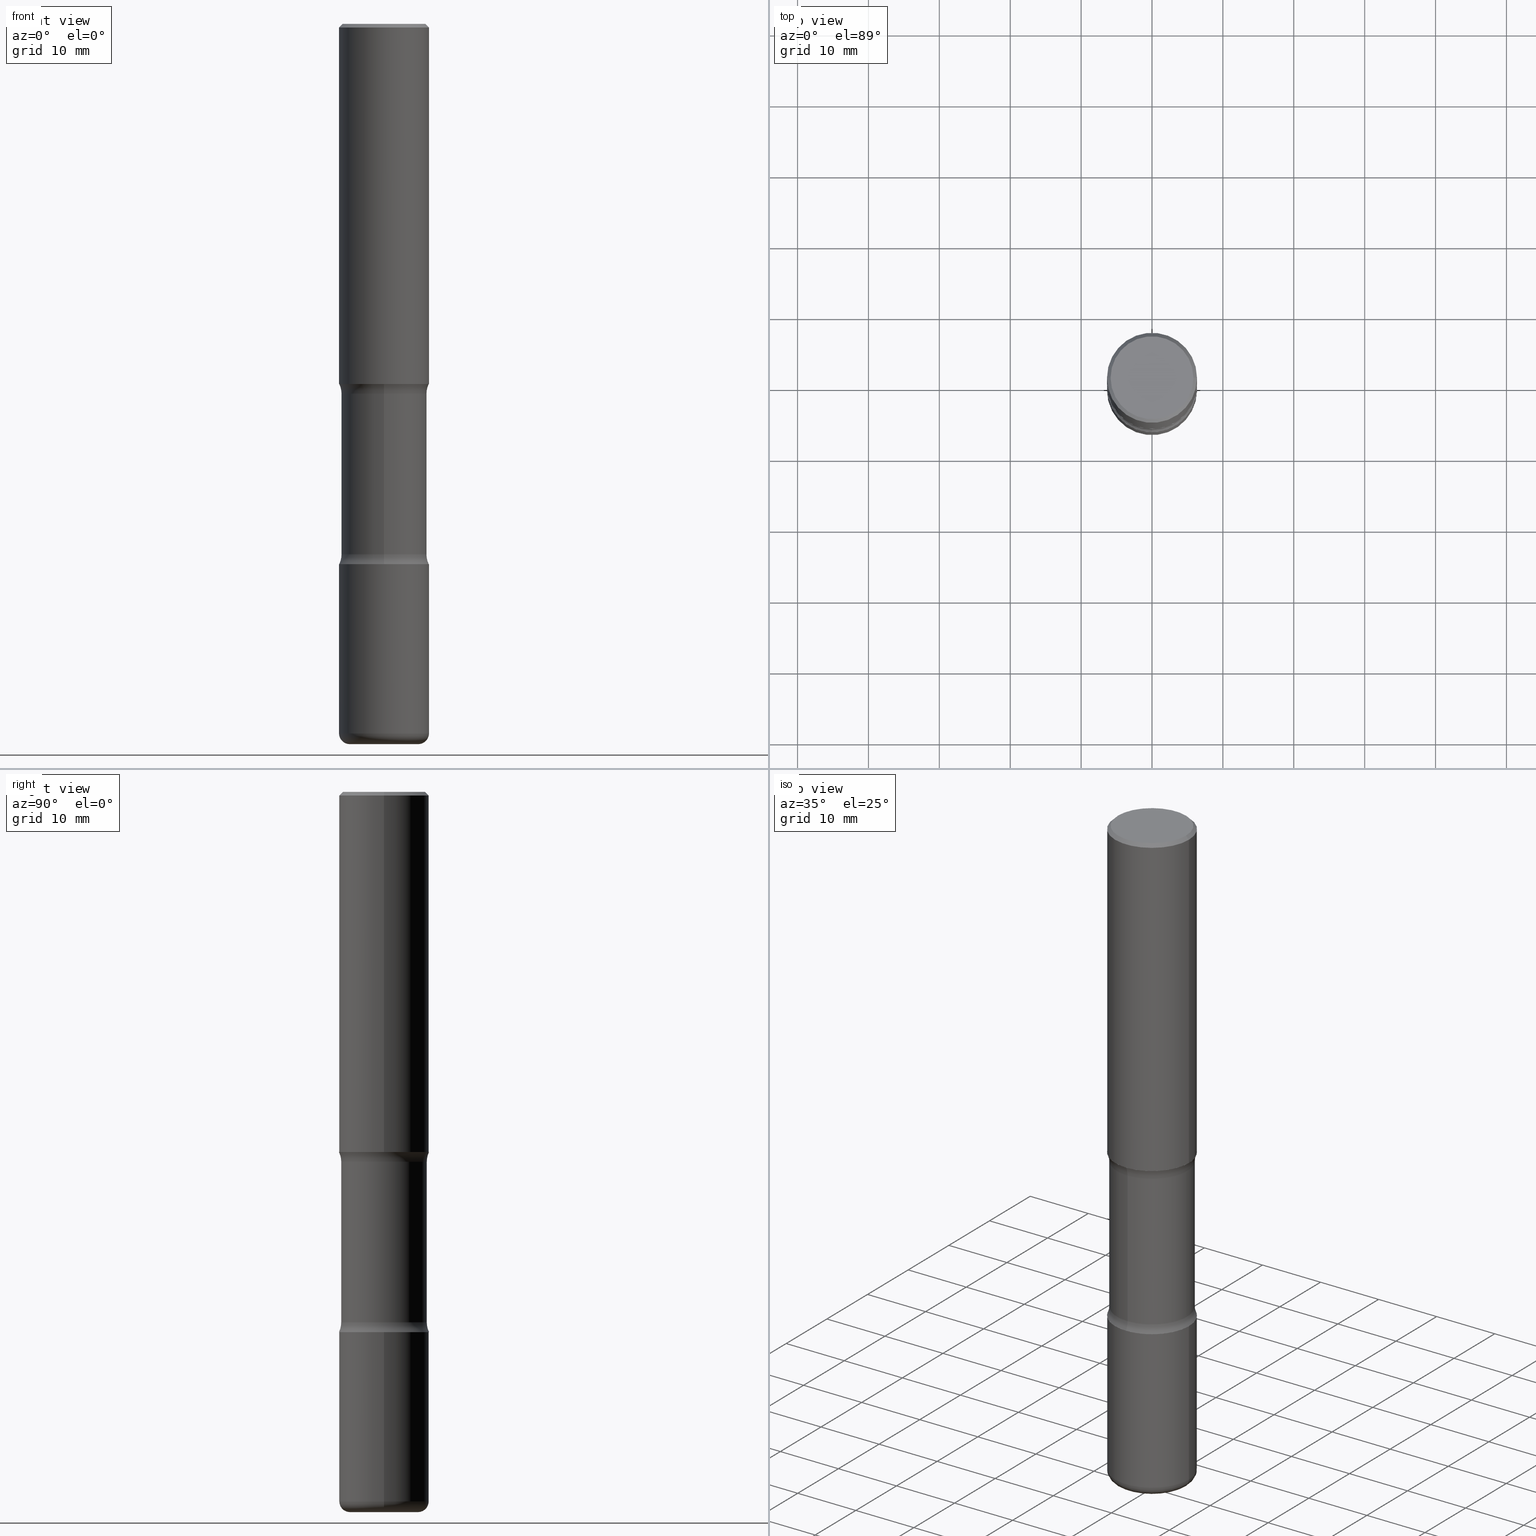
[diagram: canonical four-view strip — front | top / right | iso, engineering-drawing reading convention]
A machine part, canonical four-view strip (front | top / right | iso — engineering-drawing reading convention). The complete STEP part file that produces these views, byte-faithful:
ISO-10303-21;
HEADER;
FILE_DESCRIPTION (( 'STEP AP203' ),
    '1' );
FILE_NAME ('37884.STEP',
    '2024-03-02T01:04:07',
    ( '' ),
    ( '' ),
    'SwSTEP 2.0',
    'SolidWorks 2023',
    '' );
FILE_SCHEMA (( 'CONFIG_CONTROL_DESIGN' ));
ENDSEC;

DATA;
#1 = ORIENTED_EDGE ( 'NONE', *, *, #173, .T. ) ;
#2 = DIRECTION ( 'NONE',  ( -2.445468806185136597E-29, 3.491481338843145583E-15, 1.000000000000000000 ) ) ;
#3 = AXIS2_PLACEMENT_3D ( 'NONE', #403, #20, #494 ) ;
#4 = FACE_OUTER_BOUND ( 'NONE', #168, .T. ) ;
#5 = DIRECTION ( 'NONE',  ( 0.7071067811865467956, -7.319954787623254468E-15, -0.7071067811865482389 ) ) ;
#6 = ORIENTED_EDGE ( 'NONE', *, *, #523, .F. ) ;
#7 = DIRECTION ( 'NONE',  ( -0.7071067811865467956, 2.468850131082249172E-15, -0.7071067811865482389 ) ) ;
#8 = DATE_AND_TIME ( #13, #331 ) ;
#9 = COORDINATED_UNIVERSAL_TIME_OFFSET ( 5, 0, .BEHIND. ) ;
#10 = VECTOR ( 'NONE', #134, 39.37007874015748143 ) ;
#11 = AXIS2_PLACEMENT_3D ( 'NONE', #12, #45, #53 ) ;
#12 = CARTESIAN_POINT ( 'NONE',  ( 7.336406418555409790E-29, -1.047444401652943635E-14, -3.000000000000000444 ) ) ;
#13 = CALENDAR_DATE ( 2024, 1, 3 ) ;
#14 = ORGANIZATION ( 'UNSPECIFIED', 'UNSPECIFIED', '' ) ;
#15 = EDGE_CURVE ( 'NONE', #366, #549, #431, .T. ) ;
#16 = DIRECTION ( 'NONE',  ( 2.530378452311521502E-29, -3.369885892833230986E-15, -1.000000000000000000 ) ) ;
#17 = ADVANCED_FACE ( 'NONE', ( #117 ), #496, .T. ) ;
#18 = EDGE_CURVE ( 'NONE', #263, #549, #214, .T. ) ;
#19 = DIRECTION ( 'NONE',  ( 2.530378452311521502E-29, -3.369885892833230986E-15, -1.000000000000000000 ) ) ;
#20 = DIRECTION ( 'NONE',  ( -2.445468806185136597E-29, 3.491481338843145583E-15, 1.000000000000000000 ) ) ;
#21 = AXIS2_PLACEMENT_3D ( 'NONE', #365, #409, #368 ) ;
#22 = APPROVAL_STATUS ( 'not_yet_approved' ) ;
#23 = CC_DESIGN_DATE_AND_TIME_ASSIGNMENT ( #8, #183, ( #387 ) ) ;
#24 = PLANE ( 'NONE',  #82 ) ;
#25 = DIRECTION ( 'NONE',  ( -1.000000000000000000, 6.982962677686265922E-15, -4.876176775795935793E-29 ) ) ;
#26 = DIRECTION ( 'NONE',  ( 2.530378452311521502E-29, -3.369885892833230986E-15, -1.000000000000000000 ) ) ;
#27 = ORIENTED_EDGE ( 'NONE', *, *, #240, .F. ) ;
#28 = CARTESIAN_POINT ( 'NONE',  ( 0.000000000000000000, 0.000000000000000000, 0.000000000000000000 ) ) ;
#29 = SHAPE_DEFINITION_REPRESENTATION ( #479, #146 ) ;
#30 = CARTESIAN_POINT ( 'NONE',  ( 0.000000000000000000, 0.000000000000000000, 0.000000000000000000 ) ) ;
#31 = VECTOR ( 'NONE', #258, 39.37007874015748143 ) ;
#32 = CARTESIAN_POINT ( 'NONE',  ( 0.1900000000000003630, -1.508319938380238721E-14, -3.939999999999999947 ) ) ;
#33 = EDGE_LOOP ( 'NONE', ( #392, #410, #456, #43 ) ) ;
#34 = ORIENTED_EDGE ( 'NONE', *, *, #94, .F. ) ;
#35 = DIRECTION ( 'NONE',  ( 2.530378452311521502E-29, -3.369885892833230592E-15, -1.000000000000000000 ) ) ;
#36 = CARTESIAN_POINT ( 'NONE',  ( -1.715124499442836348E-15, -0.2500000000000074385, -1.999999999999999112 ) ) ;
#37 = ORIENTED_EDGE ( 'NONE', *, *, #378, .T. ) ;
#38 = AXIS2_PLACEMENT_3D ( 'NONE', #415, #373, #328 ) ;
#39 = AXIS2_PLACEMENT_3D ( 'NONE', #250, #505, #327 ) ;
#40 = EDGE_CURVE ( 'NONE', #549, #366, #404, .T. ) ;
#41 = APPLICATION_PROTOCOL_DEFINITION ( 'international standard', 'config_control_design', 1994, #92 ) ;
#42 = LINE ( 'NONE', #177, #31 ) ;
#43 = ORIENTED_EDGE ( 'NONE', *, *, #261, .F. ) ;
#44 = CARTESIAN_POINT ( 'NONE',  ( -0.1900000000000003630, -1.240640527709780088E-14, -3.939999999999999947 ) ) ;
#45 = DIRECTION ( 'NONE',  ( -2.445468806185136597E-29, 3.491481338843145583E-15, 1.000000000000000000 ) ) ;
#46 = DIRECTION ( 'NONE',  ( 6.982962677686265922E-15, 1.000000000000000000, -3.369885892833230986E-15 ) ) ;
#47 = ADVANCED_FACE ( 'NONE', ( #344 ), #249, .T. ) ;
#48 = TOROIDAL_SURFACE ( 'NONE', #424, 0.3625000000000000999, 0.1250000000000000000 ) ;
#49 = APPROVAL_PERSON_ORGANIZATION ( #309, #71, #356 ) ;
#50 = ORIENTED_EDGE ( 'NONE', *, *, #173, .F. ) ;
#51 = CARTESIAN_POINT ( 'NONE',  ( -0.2500000000000000555, 1.776356839400250859E-15, -1.229733772563726866E-29 ) ) ;
#52 = DIRECTION ( 'NONE',  ( 1.000000000000000000, -6.982962677686267499E-15, 0.000000000000000000 ) ) ;
#53 = DIRECTION ( 'NONE',  ( 1.000000000000000000, -6.982962677686270655E-15, 0.000000000000000000 ) ) ;
#54 = DATE_AND_TIME ( #265, #381 ) ;
#55 = ORIENTED_EDGE ( 'NONE', *, *, #138, .T. ) ;
#56 = DIRECTION ( 'NONE',  ( -1.000000000000000000, 6.982962677686265922E-15, -4.876176775795935793E-29 ) ) ;
#57 = CC_DESIGN_PERSON_AND_ORGANIZATION_ASSIGNMENT ( #236, #419, ( #387 ) ) ;
#58 = AXIS2_PLACEMENT_3D ( 'NONE', #484, #449, #541 ) ;
#59 = EDGE_LOOP ( 'NONE', ( #1, #186, #443, #242 ) ) ;
#60 = DIRECTION ( 'NONE',  ( 1.000000000000000000, -6.982962677686265922E-15, 0.000000000000000000 ) ) ;
#61 = DIRECTION ( 'NONE',  ( 2.438088387897960049E-29, -3.491481338843145188E-15, -1.000000000000000000 ) ) ;
#62 = APPROVAL ( #22, 'UNSPECIFIED' ) ;
#63 = VERTEX_POINT ( 'NONE', #520 ) ;
#64 = CARTESIAN_POINT ( 'NONE',  ( 4.943898765775623630E-29, -7.288170524422749615E-15, -2.054486236794258680 ) ) ;
#65 = AXIS2_PLACEMENT_3D ( 'NONE', #121, #465, #294 ) ;
#66 = CARTESIAN_POINT ( 'NONE',  ( 4.890937612370273194E-29, -6.982962677686291165E-15, -2.000000000000000000 ) ) ;
#67 = APPROVAL_DATE_TIME ( #102, #71 ) ;
#68 = EDGE_LOOP ( 'NONE', ( #281, #337 ) ) ;
#69 = DIRECTION ( 'NONE',  ( -2.530378452311521502E-29, 3.369885892833230592E-15, 1.000000000000000000 ) ) ;
#70 = EDGE_CURVE ( 'NONE', #122, #453, #257, .T. ) ;
#71 = APPROVAL ( #185, 'UNSPECIFIED' ) ;
#72 = ORIENTED_EDGE ( 'NONE', *, *, #268, .T. ) ;
#73 = DIRECTION ( 'NONE',  ( 6.982962677686265922E-15, 1.000000000000000000, -3.369885892833230986E-15 ) ) ;
#74 = TOROIDAL_SURFACE ( 'NONE', #385, 0.1900000000000003630, 0.05999999999999995615 ) ;
#75 = FACE_OUTER_BOUND ( 'NONE', #178, .T. ) ;
#76 = EDGE_LOOP ( 'NONE', ( #201, #150, #372, #547 ) ) ;
#77 = DIRECTION ( 'NONE',  ( 0.000000000000000000, 0.000000000000000000, 1.000000000000000000 ) ) ;
#78 = ADVANCED_FACE ( 'NONE', ( #526 ), #228, .F. ) ;
#79 = CARTESIAN_POINT ( 'NONE',  ( 0.2500000000000002776, -1.222018468595100619E-14, -3.000000000000000444 ) ) ;
#80 = EDGE_LOOP ( 'NONE', ( #420, #55 ) ) ;
#81 = AXIS2_PLACEMENT_3D ( 'NONE', #44, #560, #127 ) ;
#82 = AXIS2_PLACEMENT_3D ( 'NONE', #223, #61, #25 ) ;
#83 = AXIS2_PLACEMENT_3D ( 'NONE', #248, #282, #461 ) ;
#84 = ORIENTED_EDGE ( 'NONE', *, *, #540, .F. ) ;
#85 = DIRECTION ( 'NONE',  ( -1.000000000000000000, 6.982962677686265922E-15, -4.883557194083112340E-29 ) ) ;
#86 = DIRECTION ( 'NONE',  ( -2.445468806185136597E-29, 3.491481338843145583E-15, 1.000000000000000000 ) ) ;
#87 = PLANE ( 'NONE',  #103 ) ;
#88 = AXIS2_PLACEMENT_3D ( 'NONE', #290, #247, #300 ) ;
#89 = AXIS2_PLACEMENT_3D ( 'NONE', #215, #391, #341 ) ;
#90 = EDGE_LOOP ( 'NONE', ( #6, #512, #537, #267 ) ) ;
#91 = CARTESIAN_POINT ( 'NONE',  ( 4.976491023364875751E-29, -7.241496556518841686E-15, -2.054486236794258680 ) ) ;
#92 = APPLICATION_CONTEXT ( 'configuration controlled 3d designs of mechanical parts and assemblies' ) ;
#93 = EDGE_CURVE ( 'NONE', #210, #546, #467, .T. ) ;
#94 = EDGE_CURVE ( 'NONE', #142, #164, #221, .T. ) ;
#95 = FACE_OUTER_BOUND ( 'NONE', #557, .T. ) ;
#96 = AXIS2_PLACEMENT_3D ( 'NONE', #477, #86, #538 ) ;
#97 = CYLINDRICAL_SURFACE ( 'NONE', #432, 0.2375000000000000999 ) ;
#98 = DIRECTION ( 'NONE',  ( 1.000000000000000000, -6.982962677686265922E-15, 4.876176775795935793E-29 ) ) ;
#99 = EDGE_LOOP ( 'NONE', ( #506, #539, #389, #84 ) ) ;
#100 = DIRECTION ( 'NONE',  ( 1.000000000000000000, -6.982962677686269077E-15, 4.883557194083113462E-29 ) ) ;
#101 = DIRECTION ( 'NONE',  ( 6.982962677686265133E-15, 1.000000000000000000, -2.300503573612010239E-15 ) ) ;
#102 = DATE_AND_TIME ( #408, #470 ) ;
#103 = AXIS2_PLACEMENT_3D ( 'NONE', #483, #481, #137 ) ;
#104 = VECTOR ( 'NONE', #35, 39.37007874015748143 ) ;
#105 = EDGE_LOOP ( 'NONE', ( #338, #550, #118, #144 ) ) ;
#106 = PERSON ( 'UNSPECIFIED', 'UNSPECIFIED', 'UNSPECIFIED', ('UNSPECIFIED'), ('UNSPECIFIED'), ('UNSPECIFIED') ) ;
#107 = APPROVAL_ROLE ( '' ) ;
#108 = CC_DESIGN_PERSON_AND_ORGANIZATION_ASSIGNMENT ( #435, #531, ( #444 ) ) ;
#109 = EDGE_CURVE ( 'NONE', #485, #423, #413, .T. ) ;
#110 = DATE_AND_TIME ( #369, #425 ) ;
#111 = DIRECTION ( 'NONE',  ( 1.000000000000000000, -6.982962677686270655E-15, 0.000000000000000000 ) ) ;
#112 = VERTEX_POINT ( 'NONE', #335 ) ;
#113 = DIRECTION ( 'NONE',  ( 6.982962677686265133E-15, 1.000000000000000000, -3.278217592397110735E-15 ) ) ;
#114 = CARTESIAN_POINT ( 'NONE',  ( -0.1900000000000003630, -1.229798689653506559E-14, -4.000000000000000000 ) ) ;
#115 = SECURITY_CLASSIFICATION_LEVEL ( 'unclassified' ) ;
#116 = CC_DESIGN_APPROVAL ( #120, ( #131 ) ) ;
#117 = FACE_OUTER_BOUND ( 'NONE', #76, .T. ) ;
#118 = ORIENTED_EDGE ( 'NONE', *, *, #514, .T. ) ;
#119 =( CONVERSION_BASED_UNIT ( 'INCH', #548 ) LENGTH_UNIT ( ) NAMED_UNIT ( #471 ) );
#120 = APPROVAL ( #500, 'UNSPECIFIED' ) ;
#121 = CARTESIAN_POINT ( 'NONE',  ( 9.635147096369438236E-29, -1.375643647504199401E-14, -3.939999999999999947 ) ) ;
#122 = VERTEX_POINT ( 'NONE', #376 ) ;
#123 = DIRECTION ( 'NONE',  ( 2.530378452311521502E-29, -3.369885892833230986E-15, -1.000000000000000000 ) ) ;
#124 = DIRECTION ( 'NONE',  ( 1.000000000000000000, -6.982962677686267499E-15, 4.876176775795936353E-29 ) ) ;
#125 = ORIENTED_EDGE ( 'NONE', *, *, #474, .T. ) ;
#126 = EDGE_LOOP ( 'NONE', ( #195, #169, #552, #286 ) ) ;
#127 = DIRECTION ( 'NONE',  ( -1.000000000000000000, 7.105427357600993970E-15, 0.000000000000000000 ) ) ;
#128 = CIRCLE ( 'NONE', #58, 0.1900000000000003630 ) ;
#129 = AXIS2_PLACEMENT_3D ( 'NONE', #554, #69, #330 ) ;
#130 = DIRECTION ( 'NONE',  ( 1.000000000000000000, -6.982962677686267499E-15, 4.876176775795936353E-29 ) ) ;
#131 = PRODUCT_DEFINITION ( 'UNKNOWN', '', #444, #528 ) ;
#132 = MANIFOLD_SOLID_BREP ( 'Body-Move/Copy2[1]', #204 ) ;
#133 = CARTESIAN_POINT ( 'NONE',  ( 9.781875224740546387E-29, -1.396592535537258233E-14, -4.000000000000000000 ) ) ;
#134 = DIRECTION ( 'NONE',  ( -2.445468806185136877E-29, 3.491481338843145188E-15, 1.000000000000000000 ) ) ;
#135 = CARTESIAN_POINT ( 'NONE',  ( 7.336406418555409790E-29, -1.047444401652943635E-14, -3.000000000000000444 ) ) ;
#136 = CIRCLE ( 'NONE', #342, 0.1900000000000003630 ) ;
#137 = DIRECTION ( 'NONE',  ( 6.982962677686265922E-15, 1.000000000000000000, -3.369885892833230592E-15 ) ) ;
#138 = EDGE_CURVE ( 'NONE', #421, #63, #237, .T. ) ;
#139 = ADVANCED_FACE ( 'NONE', ( #297 ), #269, .T. ) ;
#140 = DIRECTION ( 'NONE',  ( -2.445468806185136877E-29, 3.491481338843145188E-15, 1.000000000000000000 ) ) ;
#141 = PERSON_AND_ORGANIZATION ( #106, #14 ) ;
#142 = VERTEX_POINT ( 'NONE', #36 ) ;
#143 = DIRECTION ( 'NONE',  ( 1.000000000000000000, -6.982962677686267499E-15, 4.876176775795935793E-29 ) ) ;
#144 = ORIENTED_EDGE ( 'NONE', *, *, #522, .T. ) ;
#145 = AXIS2_PLACEMENT_3D ( 'NONE', #359, #441, #148 ) ;
#146 = ADVANCED_BREP_SHAPE_REPRESENTATION ( '37884', ( #132, #507, #305, #316 ), #153 ) ;
#147 = FACE_OUTER_BOUND ( 'NONE', #59, .T. ) ;
#148 = DIRECTION ( 'NONE',  ( 1.000000000000000000, -6.982962677686266711E-15, 4.876176775795935793E-29 ) ) ;
#149 = PERSON_AND_ORGANIZATION ( #106, #14 ) ;
#150 = ORIENTED_EDGE ( 'NONE', *, *, #326, .T. ) ;
#151 = DIRECTION ( 'NONE',  ( 6.982962677686265133E-15, 1.000000000000000000, -3.450755360418014766E-15 ) ) ;
#152 = AXIS2_PLACEMENT_3D ( 'NONE', #458, #235, #73 ) ;
#153 =( GEOMETRIC_REPRESENTATION_CONTEXT ( 3 ) GLOBAL_UNCERTAINTY_ASSIGNED_CONTEXT ( ( #448 ) ) GLOBAL_UNIT_ASSIGNED_CONTEXT ( ( #119, #412, #504 ) ) REPRESENTATION_CONTEXT ( 'NONE', 'WORKASPACE' ) );
#154 = CC_DESIGN_PERSON_AND_ORGANIZATION_ASSIGNMENT ( #141, #310, ( #444 ) ) ;
#155 = EDGE_LOOP ( 'NONE', ( #361, #159, #292, #238 ) ) ;
#156 = CARTESIAN_POINT ( 'NONE',  ( 1.745740669421641422E-15, 0.2499999999999897582, -3.000000000000000888 ) ) ;
#157 = CARTESIAN_POINT ( 'NONE',  ( -0.2500000000000003331, -1.198007963564174197E-14, -3.939999999999999947 ) ) ;
#158 = EDGE_CURVE ( 'NONE', #288, #549, #279, .T. ) ;
#159 = ORIENTED_EDGE ( 'NONE', *, *, #454, .T. ) ;
#160 = DIRECTION ( 'NONE',  ( -6.982962677686266711E-15, -1.000000000000000000, 3.491481338843145583E-15 ) ) ;
#161 = CIRCLE ( 'NONE', #351, 0.1250000000000000000 ) ;
#162 = EDGE_LOOP ( 'NONE', ( #339, #427, #336, #508 ) ) ;
#163 = AXIS2_PLACEMENT_3D ( 'NONE', #28, #501, #196 ) ;
#164 = VERTEX_POINT ( 'NONE', #289 ) ;
#165 = APPLICATION_PROTOCOL_DEFINITION ( 'international standard', 'config_control_design', 1994, #466 ) ;
#166 = DIRECTION ( 'NONE',  ( 6.982962677686265133E-15, 1.000000000000000000, -3.278217592397110735E-15 ) ) ;
#167 = VERTEX_POINT ( 'NONE', #79 ) ;
#168 = EDGE_LOOP ( 'NONE', ( #72, #37 ) ) ;
#169 = ORIENTED_EDGE ( 'NONE', *, *, #272, .T. ) ;
#170 = CARTESIAN_POINT ( 'NONE',  ( 4.890937612370289799E-31, -6.982962677686315028E-17, -0.02000000000000006981 ) ) ;
#171 = DIRECTION ( 'NONE',  ( 1.000000000000000000, -6.982962677686270655E-15, 0.000000000000000000 ) ) ;
#172 = ADVANCED_FACE ( 'NONE', ( #198 ), #536, .F. ) ;
#173 = EDGE_CURVE ( 'NONE', #423, #546, #197, .T. ) ;
#174 = VECTOR ( 'NONE', #140, 39.37007874015748143 ) ;
#175 = DIRECTION ( 'NONE',  ( 2.530378452311521502E-29, -3.369885892833230592E-15, -1.000000000000000000 ) ) ;
#176 = FACE_OUTER_BOUND ( 'NONE', #511, .T. ) ;
#177 = CARTESIAN_POINT ( 'NONE',  ( 0.2500000000000003331, -1.745740669421569044E-15, 1.219044193948985630E-29 ) ) ;
#178 = EDGE_LOOP ( 'NONE', ( #125, #374, #243, #400 ) ) ;
#179 = CC_DESIGN_PERSON_AND_ORGANIZATION_ASSIGNMENT ( #360, #490, ( #131 ) ) ;
#180 = CARTESIAN_POINT ( 'NONE',  ( 4.890937612370289799E-31, -6.982962677686315028E-17, -0.02000000000000006981 ) ) ;
#181 = CIRCLE ( 'NONE', #499, 0.2299999999999998990 ) ;
#182 = DIRECTION ( 'NONE',  ( -2.445468806185136597E-29, 3.491481338843145583E-15, 1.000000000000000000 ) ) ;
#183 = DATE_TIME_ROLE ( 'classification_date' ) ;
#184 = CARTESIAN_POINT ( 'NONE',  ( 0.2500000000000003331, -1.550217714446356385E-14, -3.939999999999999947 ) ) ;
#185 = APPROVAL_STATUS ( 'not_yet_approved' ) ;
#186 = ORIENTED_EDGE ( 'NONE', *, *, #343, .T. ) ;
#187 = FACE_OUTER_BOUND ( 'NONE', #80, .T. ) ;
#188 = VECTOR ( 'NONE', #175, 39.37007874015748143 ) ;
#189 = CIRCLE ( 'NONE', #11, 0.2500000000000002776 ) ;
#190 = DIRECTION ( 'NONE',  ( -2.445468806185136597E-29, 3.491481338843145583E-15, 1.000000000000000000 ) ) ;
#191 = ORIENTED_EDGE ( 'NONE', *, *, #343, .F. ) ;
#192 = DIRECTION ( 'NONE',  ( 1.000000000000000000, -6.982962677686266711E-15, 4.876176775795935793E-29 ) ) ;
#193 = CC_DESIGN_DATE_AND_TIME_ASSIGNMENT ( #226, #440, ( #131 ) ) ;
#194 = CARTESIAN_POINT ( 'NONE',  ( 9.635147096369438236E-29, -1.375643647504199401E-14, -3.939999999999999947 ) ) ;
#195 = ORIENTED_EDGE ( 'NONE', *, *, #436, .F. ) ;
#196 = DIRECTION ( 'NONE',  ( 1.000000000000000000, -6.982962677686267499E-15, 4.876176775795935793E-29 ) ) ;
#197 = CIRCLE ( 'NONE', #251, 0.2500000000000003886 ) ;
#198 = FACE_OUTER_BOUND ( 'NONE', #105, .T. ) ;
#199 = PERSON_AND_ORGANIZATION ( #106, #14 ) ;
#200 = CARTESIAN_POINT ( 'NONE',  ( 4.806027966243888288E-29, -7.104558123696206156E-15, -2.000000000000000000 ) ) ;
#201 = ORIENTED_EDGE ( 'NONE', *, *, #138, .F. ) ;
#202 = VERTEX_POINT ( 'NONE', #156 ) ;
#203 = CARTESIAN_POINT ( 'NONE',  ( -1.672246386956739071E-15, -0.2375000000000103417, -2.945513763205740876 ) ) ;
#204 = CLOSED_SHELL ( 'NONE', ( #429, #139, #402, #497, #417, #370 ) ) ;
#205 = CARTESIAN_POINT ( 'NONE',  ( -2.486930524192108484E-15, -0.3625000000000104250, -2.945513763205740432 ) ) ;
#206 = CIRCLE ( 'NONE', #222, 0.2500000000000002776 ) ;
#207 = CARTESIAN_POINT ( 'NONE',  ( 4.806027966243888288E-29, -7.104558123696206156E-15, -2.000000000000000000 ) ) ;
#208 = ADVANCED_FACE ( 'NONE', ( #426 ), #527, .F. ) ;
#209 = LINE ( 'NONE', #256, #350 ) ;
#210 = VERTEX_POINT ( 'NONE', #114 ) ;
#211 = DIRECTION ( 'NONE',  ( -2.445468806185136597E-29, 3.491481338843145583E-15, 1.000000000000000000 ) ) ;
#212 = AXIS2_PLACEMENT_3D ( 'NONE', #394, #85, #352 ) ;
#213 = APPROVAL_PERSON_ORGANIZATION ( #149, #62, #319 ) ;
#214 = LINE ( 'NONE', #219, #188 ) ;
#215 = CARTESIAN_POINT ( 'NONE',  ( -2.486930524192130572E-15, -0.3625000000000073164, -2.054486236794257792 ) ) ;
#216 = ORIENTED_EDGE ( 'NONE', *, *, #395, .T. ) ;
#217 = CARTESIAN_POINT ( 'NONE',  ( 0.2499999999999999167, -1.784954126219745400E-15, -0.02000000000000006981 ) ) ;
#218 = ORIENTED_EDGE ( 'NONE', *, *, #388, .F. ) ;
#219 = CARTESIAN_POINT ( 'NONE',  ( -1.629368274470640415E-15, -0.2375000000000139222, -3.999999999999999556 ) ) ;
#220 = CARTESIAN_POINT ( 'NONE',  ( 0.2500000000000001665, -8.728703347107858632E-15, -2.000000000000000000 ) ) ;
#221 = CIRCLE ( 'NONE', #515, 0.2500000000000003886 ) ;
#222 = AXIS2_PLACEMENT_3D ( 'NONE', #135, #433, #304 ) ;
#223 = CARTESIAN_POINT ( 'NONE',  ( 9.781875224740546387E-29, -1.396592535537258233E-14, -4.000000000000000000 ) ) ;
#224 = FACE_OUTER_BOUND ( 'NONE', #162, .T. ) ;
#225 = DIRECTION ( 'NONE',  ( 6.982962677686265133E-15, 1.000000000000000000, -2.300503573612010239E-15 ) ) ;
#226 = DATE_AND_TIME ( #275, #556 ) ;
#227 = EDGE_LOOP ( 'NONE', ( #296, #27, #276, #543 ) ) ;
#228 = TOROIDAL_SURFACE ( 'NONE', #321, 0.3625000000000000999, 0.1250000000000000278 ) ;
#229 = AXIS2_PLACEMENT_3D ( 'NONE', #180, #521, #348 ) ;
#230 = APPROVAL_PERSON_ORGANIZATION ( #283, #120, #107 ) ;
#231 = DIRECTION ( 'NONE',  ( -2.445468806185136597E-29, 3.491481338843145583E-15, 1.000000000000000000 ) ) ;
#232 = EDGE_CURVE ( 'NONE', #423, #167, #42, .T. ) ;
#233 = CARTESIAN_POINT ( 'NONE',  ( 9.866784870866931853E-29, -1.384432990936266734E-14, -4.000000000000000000 ) ) ;
#234 = FACE_OUTER_BOUND ( 'NONE', #68, .T. ) ;
#235 = DIRECTION ( 'NONE',  ( 2.530378452311521502E-29, -3.369885892833230986E-15, -1.000000000000000000 ) ) ;
#236 = PERSON_AND_ORGANIZATION ( #106, #14 ) ;
#237 = CIRCLE ( 'NONE', #287, 0.2299999999999998990 ) ;
#238 = ORIENTED_EDGE ( 'NONE', *, *, #395, .F. ) ;
#239 = AXIS2_PLACEMENT_3D ( 'NONE', #451, #190, #143 ) ;
#240 = EDGE_CURVE ( 'NONE', #202, #288, #206, .T. ) ;
#241 = DIRECTION ( 'NONE',  ( 6.860497997771532351E-15, 1.000000000000000000, 0.000000000000000000 ) ) ;
#242 = ORIENTED_EDGE ( 'NONE', *, *, #232, .F. ) ;
#243 = ORIENTED_EDGE ( 'NONE', *, *, #312, .F. ) ;
#244 = CYLINDRICAL_SURFACE ( 'NONE', #163, 0.2500000000000000555 ) ;
#245 = ORIENTED_EDGE ( 'NONE', *, *, #498, .F. ) ;
#246 = DIRECTION ( 'NONE',  ( 1.000000000000000000, 0.000000000000000000, 0.000000000000000000 ) ) ;
#247 = DIRECTION ( 'NONE',  ( 2.445468806185136597E-29, -3.491481338843145583E-15, -1.000000000000000000 ) ) ;
#248 = CARTESIAN_POINT ( 'NONE',  ( 7.336406418555409790E-29, -1.047444401652943635E-14, -3.000000000000000444 ) ) ;
#249 = CONICAL_SURFACE ( 'NONE', #259, 0.2499999999999999167, 0.7853981633974472798 ) ;
#250 = CARTESIAN_POINT ( 'NONE',  ( 4.976491023364875751E-29, -7.241496556518841686E-15, -2.054486236794258680 ) ) ;
#251 = AXIS2_PLACEMENT_3D ( 'NONE', #383, #284, #462 ) ;
#252 = CC_DESIGN_PERSON_AND_ORGANIZATION_ASSIGNMENT ( #199, #509, ( #346 ) ) ;
#253 = LINE ( 'NONE', #434, #489 ) ;
#254 = VERTEX_POINT ( 'NONE', #217 ) ;
#255 = DIRECTION ( 'NONE',  ( 2.530378452311521502E-29, -3.369885892833230986E-15, -1.000000000000000000 ) ) ;
#256 = CARTESIAN_POINT ( 'NONE',  ( 0.2499999999999999167, -1.784954126219745400E-15, -0.02000000000000006981 ) ) ;
#257 = LINE ( 'NONE', #51, #10 ) ;
#258 = DIRECTION ( 'NONE',  ( -2.445468806185136877E-29, 3.491481338843145188E-15, 1.000000000000000000 ) ) ;
#259 = AXIS2_PLACEMENT_3D ( 'NONE', #170, #393, #390 ) ;
#260 = AXIS2_PLACEMENT_3D ( 'NONE', #64, #16, #533 ) ;
#261 = EDGE_CURVE ( 'NONE', #453, #254, #545, .T. ) ;
#262 = CIRCLE ( 'NONE', #83, 0.2500000000000002776 ) ;
#263 = VERTEX_POINT ( 'NONE', #428 ) ;
#264 = DIRECTION ( 'NONE',  ( 2.438088387897960049E-29, -3.491481338843145188E-15, -1.000000000000000000 ) ) ;
#265 = CALENDAR_DATE ( 2024, 1, 3 ) ;
#266 = CYLINDRICAL_SURFACE ( 'NONE', #145, 0.2500000000000003331 ) ;
#267 = ORIENTED_EDGE ( 'NONE', *, *, #271, .F. ) ;
#268 = EDGE_CURVE ( 'NONE', #167, #519, #189, .T. ) ;
#269 = TOROIDAL_SURFACE ( 'NONE', #65, 0.1900000000000003630, 0.05999999999999995615 ) ;
#270 = AXIS2_PLACEMENT_3D ( 'NONE', #293, #422, #151 ) ;
#271 = EDGE_CURVE ( 'NONE', #202, #366, #516, .T. ) ;
#272 = EDGE_CURVE ( 'NONE', #263, #142, #414, .T. ) ;
#273 = CARTESIAN_POINT ( 'NONE',  ( -0.2499999999999999167, 1.675911042644703182E-15, -0.02000000000000006981 ) ) ;
#274 = CARTESIAN_POINT ( 'NONE',  ( 0.000000000000000000, 0.000000000000000000, 0.000000000000000000 ) ) ;
#275 = CALENDAR_DATE ( 2024, 1, 3 ) ;
#276 = ORIENTED_EDGE ( 'NONE', *, *, #271, .T. ) ;
#277 = FACE_OUTER_BOUND ( 'NONE', #155, .T. ) ;
#278 = EDGE_CURVE ( 'NONE', #63, #453, #253, .T. ) ;
#279 = CIRCLE ( 'NONE', #405, 0.1250000000000000278 ) ;
#280 = FACE_OUTER_BOUND ( 'NONE', #299, .T. ) ;
#281 = ORIENTED_EDGE ( 'NONE', *, *, #240, .T. ) ;
#282 = DIRECTION ( 'NONE',  ( 2.530378452311521502E-29, -3.369885892833230986E-15, -1.000000000000000000 ) ) ;
#283 = PERSON_AND_ORGANIZATION ( #106, #14 ) ;
#284 = DIRECTION ( 'NONE',  ( -2.445468806185136597E-29, 3.491481338843145583E-15, 1.000000000000000000 ) ) ;
#285 = VERTEX_POINT ( 'NONE', #220 ) ;
#286 = ORIENTED_EDGE ( 'NONE', *, *, #514, .F. ) ;
#287 = AXIS2_PLACEMENT_3D ( 'NONE', #30, #510, #124 ) ;
#288 = VERTEX_POINT ( 'NONE', #396 ) ;
#289 = CARTESIAN_POINT ( 'NONE',  ( 1.745740669421617165E-15, 0.2499999999999933109, -2.000000000000000888 ) ) ;
#290 = CARTESIAN_POINT ( 'NONE',  ( 4.890937612370289799E-31, -6.982962677686315028E-17, -0.02000000000000006981 ) ) ;
#291 = EDGE_LOOP ( 'NONE', ( #475, #371, #50, #517 ) ) ;
#292 = ORIENTED_EDGE ( 'NONE', *, *, #109, .T. ) ;
#293 = CARTESIAN_POINT ( 'NONE',  ( 4.943898765775623630E-29, -7.288170524422749615E-15, -2.054486236794258680 ) ) ;
#294 = DIRECTION ( 'NONE',  ( 1.000000000000000000, -6.982962677686269077E-15, 4.883557194083113462E-29 ) ) ;
#295 = EDGE_CURVE ( 'NONE', #485, #210, #136, .T. ) ;
#296 = ORIENTED_EDGE ( 'NONE', *, *, #158, .F. ) ;
#297 = FACE_OUTER_BOUND ( 'NONE', #291, .T. ) ;
#298 = AXIS2_PLACEMENT_3D ( 'NONE', #530, #2, #171 ) ;
#299 = EDGE_LOOP ( 'NONE', ( #191, #216, #358, #463 ) ) ;
#300 = DIRECTION ( 'NONE',  ( -1.000000000000000000, 6.982962677686267499E-15, 0.000000000000000000 ) ) ;
#301 = CARTESIAN_POINT ( 'NONE',  ( 0.000000000000000000, 0.000000000000000000, 0.000000000000000000 ) ) ;
#302 = PRODUCT_RELATED_PRODUCT_CATEGORY ( 'detail', '', ( #346 ) ) ;
#303 = CARTESIAN_POINT ( 'NONE',  ( -0.2500000000000003331, 1.776356839400252831E-15, -1.229733772563727987E-29 ) ) ;
#304 = DIRECTION ( 'NONE',  ( 6.982962677686265922E-15, 1.000000000000000000, -4.370956789862816416E-15 ) ) ;
#305 = MANIFOLD_SOLID_BREP ( 'Body-Move/Copy2[4]', #525 ) ;
#306 = AXIS2_PLACEMENT_3D ( 'NONE', #274, #486, #192 ) ;
#307 = FACE_OUTER_BOUND ( 'NONE', #126, .T. ) ;
#308 = CYLINDRICAL_SURFACE ( 'NONE', #239, 0.2500000000000000555 ) ;
#309 = PERSON_AND_ORGANIZATION ( #106, #14 ) ;
#310 = PERSON_AND_ORGANIZATION_ROLE ( 'design_supplier' ) ;
#311 = ORIENTED_EDGE ( 'NONE', *, *, #278, .T. ) ;
#312 = EDGE_CURVE ( 'NONE', #254, #453, #315, .T. ) ;
#313 = PLANE ( 'NONE',  #468 ) ;
#314 = CIRCLE ( 'NONE', #260, 0.2375000000000001277 ) ;
#315 = CIRCLE ( 'NONE', #229, 0.2499999999999999167 ) ;
#316 = AXIS2_PLACEMENT_3D ( 'NONE', #464, #77, #246 ) ;
#317 = CARTESIAN_POINT ( 'NONE',  ( 9.866784870866931853E-29, -1.384432990936266734E-14, -4.000000000000000000 ) ) ;
#318 = FACE_OUTER_BOUND ( 'NONE', #99, .T. ) ;
#319 = APPROVAL_ROLE ( '' ) ;
#320 = CARTESIAN_POINT ( 'NONE',  ( 4.890937612370273194E-29, -6.982962677686291165E-15, -2.000000000000000000 ) ) ;
#321 = AXIS2_PLACEMENT_3D ( 'NONE', #340, #26, #418 ) ;
#322 = CIRCLE ( 'NONE', #96, 0.2500000000000003886 ) ;
#323 = CIRCLE ( 'NONE', #491, 0.2500000000000003886 ) ;
#324 = LINE ( 'NONE', #325, #104 ) ;
#325 = CARTESIAN_POINT ( 'NONE',  ( 1.658453635950587543E-15, 0.2374999999999862776, -4.000000000000000888 ) ) ;
#326 = EDGE_CURVE ( 'NONE', #421, #254, #209, .T. ) ;
#327 = DIRECTION ( 'NONE',  ( 6.982962677686265922E-15, 1.000000000000000000, -3.369885892833230986E-15 ) ) ;
#328 = DIRECTION ( 'NONE',  ( 6.982962677686265133E-15, 1.000000000000000000, -2.300503573612010239E-15 ) ) ;
#329 = AXIS2_PLACEMENT_3D ( 'NONE', #233, #19, #101 ) ;
#330 = DIRECTION ( 'NONE',  ( -6.982962677686265922E-15, -1.000000000000000000, 3.369885892833230592E-15 ) ) ;
#331 = LOCAL_TIME ( 20, 4, 7.000000000000000000, #452 ) ;
#332 = ORIENTED_EDGE ( 'NONE', *, *, #522, .F. ) ;
#333 = MECHANICAL_CONTEXT ( 'NONE', #466, 'mechanical' ) ;
#334 = EDGE_CURVE ( 'NONE', #285, #254, #529, .T. ) ;
#335 = CARTESIAN_POINT ( 'NONE',  ( 1.658453635950538436E-15, 0.2374999999999928557, -2.054486236794259568 ) ) ;
#336 = ORIENTED_EDGE ( 'NONE', *, *, #540, .T. ) ;
#337 = ORIENTED_EDGE ( 'NONE', *, *, #523, .T. ) ;
#338 = ORIENTED_EDGE ( 'NONE', *, *, #272, .F. ) ;
#339 = ORIENTED_EDGE ( 'NONE', *, *, #18, .F. ) ;
#340 = CARTESIAN_POINT ( 'NONE',  ( 7.203162026108633562E-29, -1.028420633753849345E-14, -2.945513763205741320 ) ) ;
#341 = DIRECTION ( 'NONE',  ( 6.860497997771529985E-15, 1.000000000000000000, 0.000000000000000000 ) ) ;
#342 = AXIS2_PLACEMENT_3D ( 'NONE', #133, #211, #345 ) ;
#343 = EDGE_CURVE ( 'NONE', #546, #519, #524, .T. ) ;
#344 = FACE_OUTER_BOUND ( 'NONE', #438, .T. ) ;
#345 = DIRECTION ( 'NONE',  ( 1.000000000000000000, -6.982962677686269077E-15, 0.000000000000000000 ) ) ;
#346 = PRODUCT ( '37884', '37884', '', ( #333 ) ) ;
#347 = DIRECTION ( 'NONE',  ( -2.445468806185136877E-29, 3.491481338843145188E-15, 1.000000000000000000 ) ) ;
#348 = DIRECTION ( 'NONE',  ( 1.000000000000000000, -6.982962677686267499E-15, 0.000000000000000000 ) ) ;
#349 = CLOSED_SHELL ( 'NONE', ( #542, #17, #47, #513, #437, #411 ) ) ;
#350 = VECTOR ( 'NONE', #5, 39.37007874015748143 ) ;
#351 = AXIS2_PLACEMENT_3D ( 'NONE', #544, #551, #457 ) ;
#352 = DIRECTION ( 'NONE',  ( -6.982962677686265133E-15, -1.000000000000000000, 0.000000000000000000 ) ) ;
#353 = ADVANCED_FACE ( 'NONE', ( #176 ), #87, .F. ) ;
#354 = APPROVAL_DATE_TIME ( #54, #62 ) ;
#355 = CARTESIAN_POINT ( 'NONE',  ( 0.2299999999999998990, -1.681434332853598617E-15, 1.149527484987432660E-29 ) ) ;
#356 = APPROVAL_ROLE ( '' ) ;
#357 = APPROVAL_DATE_TIME ( #110, #120 ) ;
#358 = ORIENTED_EDGE ( 'NONE', *, *, #232, .T. ) ;
#359 = CARTESIAN_POINT ( 'NONE',  ( 0.000000000000000000, 0.000000000000000000, 0.000000000000000000 ) ) ;
#360 = PERSON_AND_ORGANIZATION ( #106, #14 ) ;
#361 = ORIENTED_EDGE ( 'NONE', *, *, #93, .F. ) ;
#362 = CIRCLE ( 'NONE', #298, 0.2500000000000002776 ) ;
#363 = CC_DESIGN_APPROVAL ( #71, ( #387 ) ) ;
#364 = ADVANCED_FACE ( 'NONE', ( #307 ), #48, .F. ) ;
#365 = CARTESIAN_POINT ( 'NONE',  ( 1.606081415867840476E-15, 0.2299999999999998990, -8.030407079339231961E-16 ) ) ;
#366 = VERTEX_POINT ( 'NONE', #386 ) ;
#367 = FACE_OUTER_BOUND ( 'NONE', #558, .T. ) ;
#368 = DIRECTION ( 'NONE',  ( -1.000000000000000000, 6.982962677686265922E-15, -4.876176775795935793E-29 ) ) ;
#369 = CALENDAR_DATE ( 2024, 1, 3 ) ;
#370 = ADVANCED_FACE ( 'NONE', ( #4 ), #439, .F. ) ;
#371 = ORIENTED_EDGE ( 'NONE', *, *, #93, .T. ) ;
#372 = ORIENTED_EDGE ( 'NONE', *, *, #312, .T. ) ;
#373 = DIRECTION ( 'NONE',  ( 2.530378452311521502E-29, -3.369885892833230986E-15, -1.000000000000000000 ) ) ;
#374 = ORIENTED_EDGE ( 'NONE', *, *, #70, .T. ) ;
#375 = CARTESIAN_POINT ( 'NONE',  ( -0.2500000000000002776, -1.033908340638546235E-14, -3.000000000000000444 ) ) ;
#376 = CARTESIAN_POINT ( 'NONE',  ( -0.2500000000000001665, -1.750039312831323809E-15, -2.000000000000000000 ) ) ;
#377 = ORIENTED_EDGE ( 'NONE', *, *, #454, .F. ) ;
#378 = EDGE_CURVE ( 'NONE', #519, #167, #362, .T. ) ;
#379 = AXIS2_PLACEMENT_3D ( 'NONE', #472, #182, #52 ) ;
#380 = PLANE ( 'NONE',  #129 ) ;
#381 = LOCAL_TIME ( 20, 4, 7.000000000000000000, #9 ) ;
#382 = DIRECTION ( 'NONE',  ( 2.530378452311521502E-29, -3.369885892833230986E-15, -1.000000000000000000 ) ) ;
#383 = CARTESIAN_POINT ( 'NONE',  ( 9.635147096369438236E-29, -1.375643647504199401E-14, -3.939999999999999947 ) ) ;
#384 = CARTESIAN_POINT ( 'NONE',  ( 0.2500000000000000555, -1.745740669421567269E-15, 1.219044193948984228E-29 ) ) ;
#385 = AXIS2_PLACEMENT_3D ( 'NONE', #194, #231, #100 ) ;
#386 = CARTESIAN_POINT ( 'NONE',  ( 1.658453635950560525E-15, 0.2374999999999897748, -2.945513763205741764 ) ) ;
#387 = SECURITY_CLASSIFICATION ( '', '', #115 ) ;
#388 = EDGE_CURVE ( 'NONE', #63, #421, #181, .T. ) ;
#389 = ORIENTED_EDGE ( 'NONE', *, *, #15, .F. ) ;
#390 = DIRECTION ( 'NONE',  ( -1.000000000000000000, 6.982962677686267499E-15, 0.000000000000000000 ) ) ;
#391 = DIRECTION ( 'NONE',  ( 1.000000000000000000, -6.860497997771530774E-15, 4.842287994361612002E-29 ) ) ;
#392 = ORIENTED_EDGE ( 'NONE', *, *, #70, .F. ) ;
#393 = DIRECTION ( 'NONE',  ( 2.445468806185136597E-29, -3.491481338843145583E-15, -1.000000000000000000 ) ) ;
#394 = CARTESIAN_POINT ( 'NONE',  ( 2.531323970661343863E-15, 0.3624999999999897748, -2.945513763205742652 ) ) ;
#395 = EDGE_CURVE ( 'NONE', #546, #423, #322, .T. ) ;
#396 = CARTESIAN_POINT ( 'NONE',  ( -1.715124499442811104E-15, -0.2500000000000107692, -2.999999999999999556 ) ) ;
#397 = AXIS2_PLACEMENT_3D ( 'NONE', #469, #255, #476 ) ;
#398 = CC_DESIGN_APPROVAL ( #62, ( #444 ) ) ;
#399 = FACE_OUTER_BOUND ( 'NONE', #33, .T. ) ;
#400 = ORIENTED_EDGE ( 'NONE', *, *, #334, .F. ) ;
#401 = CYLINDRICAL_SURFACE ( 'NONE', #329, 0.2375000000000000999 ) ;
#402 = ADVANCED_FACE ( 'NONE', ( #95 ), #24, .T. ) ;
#403 = CARTESIAN_POINT ( 'NONE',  ( 4.890937612370273194E-29, -6.982962677686291165E-15, -2.000000000000000000 ) ) ;
#404 = CIRCLE ( 'NONE', #397, 0.2375000000000000722 ) ;
#405 = AXIS2_PLACEMENT_3D ( 'NONE', #205, #502, #241 ) ;
#406 = CC_DESIGN_SECURITY_CLASSIFICATION ( #387, ( #444 ) ) ;
#407 = CYLINDRICAL_SURFACE ( 'NONE', #306, 0.2500000000000003331 ) ;
#408 = CALENDAR_DATE ( 2024, 1, 3 ) ;
#409 = DIRECTION ( 'NONE',  ( 2.438088387897960049E-29, -3.491481338843145188E-15, -1.000000000000000000 ) ) ;
#410 = ORIENTED_EDGE ( 'NONE', *, *, #498, .T. ) ;
#411 = ADVANCED_FACE ( 'NONE', ( #399 ), #308, .T. ) ;
#412 =( NAMED_UNIT ( * ) PLANE_ANGLE_UNIT ( ) SI_UNIT ( $, .RADIAN. ) );
#413 = CIRCLE ( 'NONE', #488, 0.05999999999999997696 ) ;
#414 = CIRCLE ( 'NONE', #89, 0.1250000000000000000 ) ;
#415 = CARTESIAN_POINT ( 'NONE',  ( 7.198535619023675570E-29, -1.029083161580289368E-14, -2.945513763205741320 ) ) ;
#416 =( LENGTH_UNIT ( ) NAMED_UNIT ( * ) SI_UNIT ( $, .METRE. ) );
#417 = ADVANCED_FACE ( 'NONE', ( #280 ), #407, .T. ) ;
#418 = DIRECTION ( 'NONE',  ( 6.982962677686265922E-15, 1.000000000000000000, -3.369885892833230986E-15 ) ) ;
#419 = PERSON_AND_ORGANIZATION_ROLE ( 'classification_officer' ) ;
#420 = ORIENTED_EDGE ( 'NONE', *, *, #388, .T. ) ;
#421 = VERTEX_POINT ( 'NONE', #355 ) ;
#422 = DIRECTION ( 'NONE',  ( 2.530378452311521502E-29, -3.369885892833230986E-15, -1.000000000000000000 ) ) ;
#423 = VERTEX_POINT ( 'NONE', #184 ) ;
#424 = AXIS2_PLACEMENT_3D ( 'NONE', #91, #430, #46 ) ;
#425 = LOCAL_TIME ( 20, 4, 7.000000000000000000, #455 ) ;
#426 = FACE_OUTER_BOUND ( 'NONE', #227, .T. ) ;
#427 = ORIENTED_EDGE ( 'NONE', *, *, #436, .T. ) ;
#428 = CARTESIAN_POINT ( 'NONE',  ( -1.672246386956763723E-15, -0.2375000000000074274, -2.054486236794258236 ) ) ;
#429 = ADVANCED_FACE ( 'NONE', ( #147 ), #266, .T. ) ;
#430 = DIRECTION ( 'NONE',  ( 2.530378452311521502E-29, -3.369885892833230986E-15, -1.000000000000000000 ) ) ;
#431 = CIRCLE ( 'NONE', #38, 0.2375000000000000722 ) ;
#432 = AXIS2_PLACEMENT_3D ( 'NONE', #317, #446, #225 ) ;
#433 = DIRECTION ( 'NONE',  ( 2.530378452311521502E-29, -3.369885892833230986E-15, -1.000000000000000000 ) ) ;
#434 = CARTESIAN_POINT ( 'NONE',  ( -0.2499999999999999167, 1.675911042644703182E-15, -0.02000000000000006981 ) ) ;
#435 = PERSON_AND_ORGANIZATION ( #106, #14 ) ;
#436 = EDGE_CURVE ( 'NONE', #263, #112, #314, .T. ) ;
#437 = ADVANCED_FACE ( 'NONE', ( #367 ), #313, .F. ) ;
#438 = EDGE_LOOP ( 'NONE', ( #534, #218, #311, #459 ) ) ;
#439 = PLANE ( 'NONE',  #450 ) ;
#440 = DATE_TIME_ROLE ( 'creation_date' ) ;
#441 = DIRECTION ( 'NONE',  ( -2.445468806185136597E-29, 3.491481338843145583E-15, 1.000000000000000000 ) ) ;
#442 = CIRCLE ( 'NONE', #3, 0.2500000000000001665 ) ;
#443 = ORIENTED_EDGE ( 'NONE', *, *, #268, .F. ) ;
#444 = PRODUCT_DEFINITION_FORMATION_WITH_SPECIFIED_SOURCE ( 'ANY', '', #346, .NOT_KNOWN. ) ;
#445 = CARTESIAN_POINT ( 'NONE',  ( 0.1900000000000003630, -1.529268826413297711E-14, -4.000000000000000000 ) ) ;
#446 = DIRECTION ( 'NONE',  ( 2.530378452311521502E-29, -3.369885892833230986E-15, -1.000000000000000000 ) ) ;
#447 = ORIENTED_EDGE ( 'NONE', *, *, #474, .F. ) ;
#448 = UNCERTAINTY_MEASURE_WITH_UNIT (LENGTH_MEASURE( 1.000000000000000082E-05 ), #119, 'distance_accuracy_value', 'NONE');
#449 = DIRECTION ( 'NONE',  ( -2.445468806185136597E-29, 3.491481338843145583E-15, 1.000000000000000000 ) ) ;
#450 = AXIS2_PLACEMENT_3D ( 'NONE', #478, #264, #56 ) ;
#451 = CARTESIAN_POINT ( 'NONE',  ( 0.000000000000000000, 0.000000000000000000, 0.000000000000000000 ) ) ;
#452 = COORDINATED_UNIVERSAL_TIME_OFFSET ( 5, 0, .BEHIND. ) ;
#453 = VERTEX_POINT ( 'NONE', #273 ) ;
#454 = EDGE_CURVE ( 'NONE', #210, #485, #128, .T. ) ;
#455 = COORDINATED_UNIVERSAL_TIME_OFFSET ( 5, 0, .BEHIND. ) ;
#456 = ORIENTED_EDGE ( 'NONE', *, *, #334, .T. ) ;
#457 = DIRECTION ( 'NONE',  ( -6.982962677686266711E-15, -1.000000000000000000, 0.000000000000000000 ) ) ;
#458 = CARTESIAN_POINT ( 'NONE',  ( 7.203162026108633562E-29, -1.028420633753849345E-14, -2.945513763205741320 ) ) ;
#459 = ORIENTED_EDGE ( 'NONE', *, *, #261, .T. ) ;
#460 = CIRCLE ( 'NONE', #480, 0.2500000000000001665 ) ;
#461 = DIRECTION ( 'NONE',  ( 6.982962677686265922E-15, 1.000000000000000000, -4.370956789862816416E-15 ) ) ;
#462 = DIRECTION ( 'NONE',  ( 1.000000000000000000, -6.982962677686267499E-15, 0.000000000000000000 ) ) ;
#463 = ORIENTED_EDGE ( 'NONE', *, *, #378, .F. ) ;
#464 = CARTESIAN_POINT ( 'NONE',  ( 0.000000000000000000, 0.000000000000000000, 0.000000000000000000 ) ) ;
#465 = DIRECTION ( 'NONE',  ( -2.445468806185136597E-29, 3.491481338843145583E-15, 1.000000000000000000 ) ) ;
#466 = APPLICATION_CONTEXT ( 'configuration controlled 3d designs of mechanical parts and assemblies' ) ;
#467 = CIRCLE ( 'NONE', #81, 0.05999999999999997696 ) ;
#468 = AXIS2_PLACEMENT_3D ( 'NONE', #66, #535, #98 ) ;
#469 = CARTESIAN_POINT ( 'NONE',  ( 7.198535619023675570E-29, -1.029083161580289368E-14, -2.945513763205741320 ) ) ;
#470 = LOCAL_TIME ( 20, 4, 7.000000000000000000, #487 ) ;
#471 = DIMENSIONAL_EXPONENTS ( 1.000000000000000000, 0.000000000000000000, 0.000000000000000000, 0.000000000000000000, 0.000000000000000000, 0.000000000000000000, 0.000000000000000000 ) ;
#472 = CARTESIAN_POINT ( 'NONE',  ( 4.890937612370289799E-31, -6.982962677686315028E-17, -0.02000000000000006981 ) ) ;
#473 = ADVANCED_FACE ( 'NONE', ( #318 ), #97, .T. ) ;
#474 = EDGE_CURVE ( 'NONE', #285, #122, #442, .T. ) ;
#475 = ORIENTED_EDGE ( 'NONE', *, *, #295, .T. ) ;
#476 = DIRECTION ( 'NONE',  ( 6.982962677686265133E-15, 1.000000000000000000, -2.300503573612010239E-15 ) ) ;
#477 = CARTESIAN_POINT ( 'NONE',  ( 9.635147096369438236E-29, -1.375643647504199401E-14, -3.939999999999999947 ) ) ;
#478 = CARTESIAN_POINT ( 'NONE',  ( 7.336406418555409790E-29, -1.047444401652943635E-14, -3.000000000000000444 ) ) ;
#479 = PRODUCT_DEFINITION_SHAPE ( 'NONE', 'NONE',  #131 ) ;
#480 = AXIS2_PLACEMENT_3D ( 'NONE', #320, #495, #60 ) ;
#481 = DIRECTION ( 'NONE',  ( 2.530378452311521502E-29, -3.369885892833230592E-15, -1.000000000000000000 ) ) ;
#482 = CIRCLE ( 'NONE', #270, 0.2375000000000001277 ) ;
#483 = CARTESIAN_POINT ( 'NONE',  ( 4.890937612370273194E-29, -6.982962677686291165E-15, -2.000000000000000000 ) ) ;
#484 = CARTESIAN_POINT ( 'NONE',  ( 9.781875224740546387E-29, -1.396592535537258233E-14, -4.000000000000000000 ) ) ;
#485 = VERTEX_POINT ( 'NONE', #445 ) ;
#486 = DIRECTION ( 'NONE',  ( -2.445468806185136597E-29, 3.491481338843145583E-15, 1.000000000000000000 ) ) ;
#487 = COORDINATED_UNIVERSAL_TIME_OFFSET ( 5, 0, .BEHIND. ) ;
#488 = AXIS2_PLACEMENT_3D ( 'NONE', #32, #160, #111 ) ;
#489 = VECTOR ( 'NONE', #7, 39.37007874015748143 ) ;
#490 = PERSON_AND_ORGANIZATION_ROLE ( 'creator' ) ;
#491 = AXIS2_PLACEMENT_3D ( 'NONE', #207, #123, #113 ) ;
#492 = PLANE ( 'NONE',  #21 ) ;
#493 = COORDINATED_UNIVERSAL_TIME_OFFSET ( 5, 0, .BEHIND. ) ;
#494 = DIRECTION ( 'NONE',  ( 1.000000000000000000, -6.982962677686265922E-15, 0.000000000000000000 ) ) ;
#495 = DIRECTION ( 'NONE',  ( -2.445468806185136597E-29, 3.491481338843145583E-15, 1.000000000000000000 ) ) ;
#496 = CONICAL_SURFACE ( 'NONE', #88, 0.2499999999999999167, 0.7853981633974472798 ) ;
#497 = ADVANCED_FACE ( 'NONE', ( #277 ), #74, .T. ) ;
#498 = EDGE_CURVE ( 'NONE', #122, #285, #460, .T. ) ;
#499 = AXIS2_PLACEMENT_3D ( 'NONE', #301, #518, #130 ) ;
#500 = APPROVAL_STATUS ( 'not_yet_approved' ) ;
#501 = DIRECTION ( 'NONE',  ( -2.445468806185136597E-29, 3.491481338843145583E-15, 1.000000000000000000 ) ) ;
#502 = DIRECTION ( 'NONE',  ( 1.000000000000000000, -6.860497997771530774E-15, 4.842287994361612002E-29 ) ) ;
#503 = ADVANCED_FACE ( 'NONE', ( #224 ), #401, .T. ) ;
#504 =( NAMED_UNIT ( * ) SI_UNIT ( $, .STERADIAN. ) SOLID_ANGLE_UNIT ( ) );
#505 = DIRECTION ( 'NONE',  ( 2.530378452311521502E-29, -3.369885892833230986E-15, -1.000000000000000000 ) ) ;
#506 = ORIENTED_EDGE ( 'NONE', *, *, #559, .T. ) ;
#507 = MANIFOLD_SOLID_BREP ( 'Body-Move/Copy2[2]', #349 ) ;
#508 = ORIENTED_EDGE ( 'NONE', *, *, #40, .F. ) ;
#509 = PERSON_AND_ORGANIZATION_ROLE ( 'design_owner' ) ;
#510 = DIRECTION ( 'NONE',  ( -2.445468806185136597E-29, 3.491481338843145583E-15, 1.000000000000000000 ) ) ;
#511 = EDGE_LOOP ( 'NONE', ( #332, #34 ) ) ;
#512 = ORIENTED_EDGE ( 'NONE', *, *, #158, .T. ) ;
#513 = ADVANCED_FACE ( 'NONE', ( #187 ), #492, .F. ) ;
#514 = EDGE_CURVE ( 'NONE', #112, #164, #161, .T. ) ;
#515 = AXIS2_PLACEMENT_3D ( 'NONE', #200, #382, #166 ) ;
#516 = CIRCLE ( 'NONE', #212, 0.1250000000000000278 ) ;
#517 = ORIENTED_EDGE ( 'NONE', *, *, #109, .F. ) ;
#518 = DIRECTION ( 'NONE',  ( -2.445468806185136597E-29, 3.491481338843145583E-15, 1.000000000000000000 ) ) ;
#519 = VERTEX_POINT ( 'NONE', #375 ) ;
#520 = CARTESIAN_POINT ( 'NONE',  ( -0.2299999999999998990, 1.640996229256271928E-15, -1.135408596578605420E-29 ) ) ;
#521 = DIRECTION ( 'NONE',  ( -2.445468806185136597E-29, 3.491481338843145583E-15, 1.000000000000000000 ) ) ;
#522 = EDGE_CURVE ( 'NONE', #164, #142, #323, .T. ) ;
#523 = EDGE_CURVE ( 'NONE', #288, #202, #262, .T. ) ;
#524 = LINE ( 'NONE', #303, #174 ) ;
#525 = CLOSED_SHELL ( 'NONE', ( #473, #78, #364, #172, #353, #532, #208, #503 ) ) ;
#526 = FACE_OUTER_BOUND ( 'NONE', #90, .T. ) ;
#527 = TOROIDAL_SURFACE ( 'NONE', #152, 0.3625000000000000999, 0.1250000000000000278 ) ;
#528 = DESIGN_CONTEXT ( 'detailed design', #92, 'design' ) ;
#529 = LINE ( 'NONE', #384, #555 ) ;
#530 = CARTESIAN_POINT ( 'NONE',  ( 7.336406418555409790E-29, -1.047444401652943635E-14, -3.000000000000000444 ) ) ;
#531 = PERSON_AND_ORGANIZATION_ROLE ( 'creator' ) ;
#532 = ADVANCED_FACE ( 'NONE', ( #234 ), #380, .F. ) ;
#533 = DIRECTION ( 'NONE',  ( 6.982962677686265133E-15, 1.000000000000000000, -3.450755360418014766E-15 ) ) ;
#534 = ORIENTED_EDGE ( 'NONE', *, *, #326, .F. ) ;
#535 = DIRECTION ( 'NONE',  ( -2.438088387897960049E-29, 3.491481338843145188E-15, 1.000000000000000000 ) ) ;
#536 = TOROIDAL_SURFACE ( 'NONE', #39, 0.3625000000000000999, 0.1250000000000000000 ) ;
#537 = ORIENTED_EDGE ( 'NONE', *, *, #40, .T. ) ;
#538 = DIRECTION ( 'NONE',  ( 1.000000000000000000, -6.982962677686267499E-15, 0.000000000000000000 ) ) ;
#539 = ORIENTED_EDGE ( 'NONE', *, *, #18, .T. ) ;
#540 = EDGE_CURVE ( 'NONE', #112, #366, #324, .T. ) ;
#541 = DIRECTION ( 'NONE',  ( 1.000000000000000000, -6.982962677686269077E-15, 0.000000000000000000 ) ) ;
#542 = ADVANCED_FACE ( 'NONE', ( #75 ), #244, .T. ) ;
#543 = ORIENTED_EDGE ( 'NONE', *, *, #15, .T. ) ;
#544 = CARTESIAN_POINT ( 'NONE',  ( 2.531323970661321775E-15, 0.3624999999999928280, -2.054486236794260012 ) ) ;
#545 = CIRCLE ( 'NONE', #379, 0.2499999999999999167 ) ;
#546 = VERTEX_POINT ( 'NONE', #157 ) ;
#547 = ORIENTED_EDGE ( 'NONE', *, *, #278, .F. ) ;
#548 = LENGTH_MEASURE_WITH_UNIT ( LENGTH_MEASURE( 0.02539999999999999897 ), #416 );
#549 = VERTEX_POINT ( 'NONE', #203 ) ;
#550 = ORIENTED_EDGE ( 'NONE', *, *, #559, .F. ) ;
#551 = DIRECTION ( 'NONE',  ( -1.000000000000000000, 6.982962677686265922E-15, -4.883557194083112340E-29 ) ) ;
#552 = ORIENTED_EDGE ( 'NONE', *, *, #94, .T. ) ;
#553 = ORIENTED_EDGE ( 'NONE', *, *, #295, .F. ) ;
#554 = CARTESIAN_POINT ( 'NONE',  ( 7.336406418555409790E-29, -1.047444401652943635E-14, -3.000000000000000444 ) ) ;
#555 = VECTOR ( 'NONE', #347, 39.37007874015748143 ) ;
#556 = LOCAL_TIME ( 20, 4, 7.000000000000000000, #493 ) ;
#557 = EDGE_LOOP ( 'NONE', ( #553, #377 ) ) ;
#558 = EDGE_LOOP ( 'NONE', ( #447, #245 ) ) ;
#559 = EDGE_CURVE ( 'NONE', #112, #263, #482, .T. ) ;
#560 = DIRECTION ( 'NONE',  ( 7.105427357601001859E-15, 1.000000000000000000, -3.491481338843145583E-15 ) ) ;
ENDSEC;
END-ISO-10303-21;
